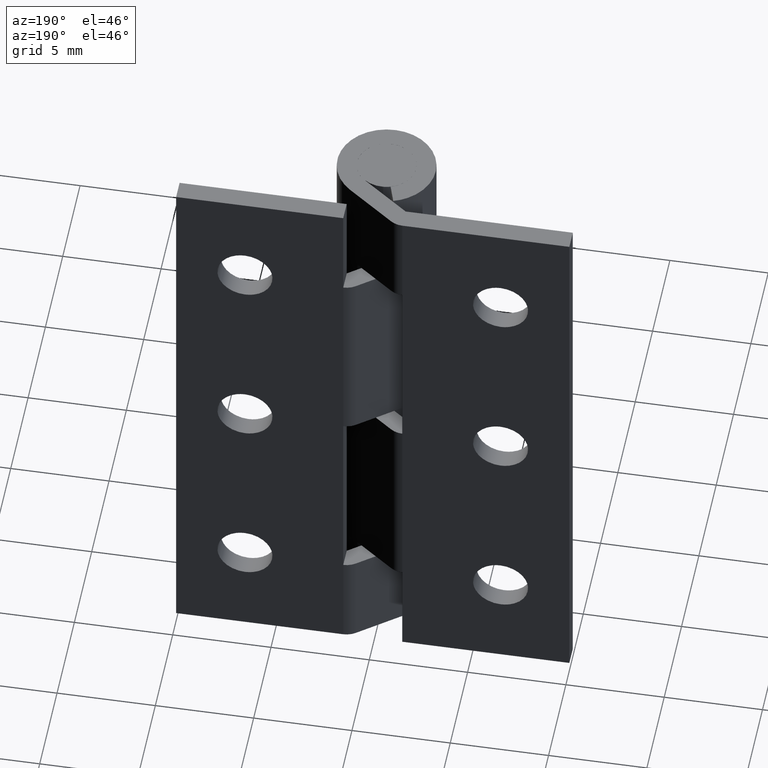
[diagram: clean part render]
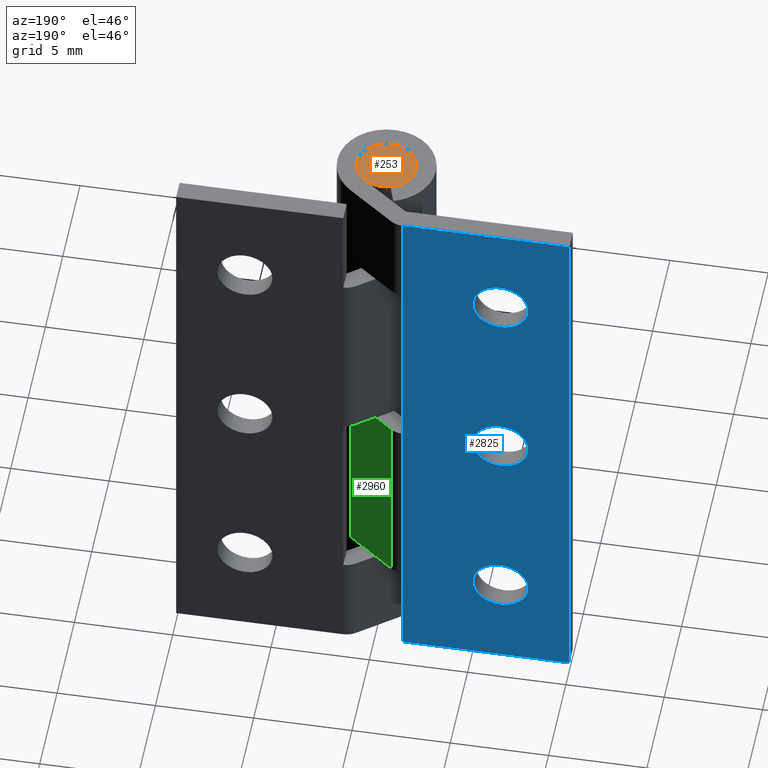
[diagram: same view with three faces highlighted in distinct colors, each labeled with its STEP entity id]
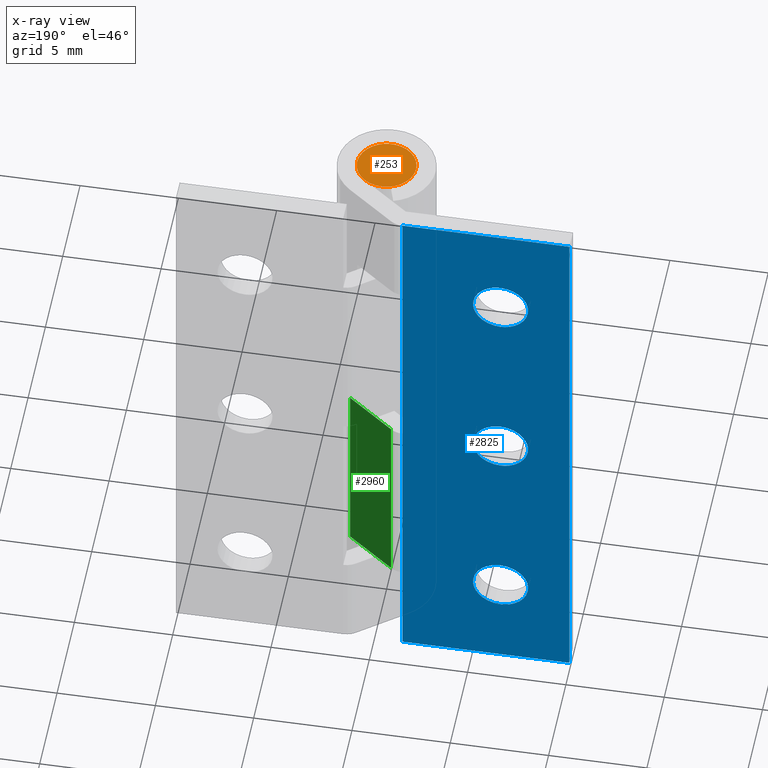
[diagram: x-ray of the same camera — body ghosted, the three highlighted faces saturated]
A machine part, auxiliary view with three faces highlighted in distinct colors.
The next image is the same camera in x-ray (body ghosted, the three faces saturated) — at least one of them is partly hidden behind the body in this view.
Their STEP definitions:

[orange] entity #253 — the highlighted face is a freeform B-spline surface patch.
#85=CARTESIAN_POINT('',(0.177051351996901,-1.489514289544101,30.0));
#86=VERTEX_POINT('',#85);
#92=CARTESIAN_POINT('',(-1.500000000000000,0.0,30.0));
#93=VERTEX_POINT('',#92);
#94=CARTESIAN_POINT('',(0.177051351996901,-1.489514289544102,30.000000000000004));
#95=CARTESIAN_POINT('',(0.088836179489753,-1.500000000000000,30.0));
#96=CARTESIAN_POINT('',(0.0,-1.500000000000000,30.0));
#97=CARTESIAN_POINT('',(-1.500000000000000,-1.500000000000000,30.000000000000004));
#98=CARTESIAN_POINT('',(-1.500000000000000,0.0,30.0));
#106=(BOUNDED_CURVE()B_SPLINE_CURVE(2,(#94,#95,#96,#97,#98),.UNSPECIFIED.,.F.,.U.)B_SPLINE_CURVE_WITH_KNOTS((3,2,3),(0.229562473512975,0.250000000000000,0.500000000000000),.UNSPECIFIED.)CURVE()GEOMETRIC_REPRESENTATION_ITEM()RATIONAL_B_SPLINE_CURVE((0.956026754182654,0.976055948330520,1.0,0.707106781186548,1.0))REPRESENTATION_ITEM(''));
#107=EDGE_CURVE('',#86,#93,#106,.T.);
#109=CARTESIAN_POINT('',(-0.091572809380306,1.497202197628028,30.0));
#110=VERTEX_POINT('',#109);
#111=CARTESIAN_POINT('',(-1.500000000000000,0.0,30.0));
#112=CARTESIAN_POINT('',(-1.500000000000000,1.411059100211211,29.999999999999996));
#113=CARTESIAN_POINT('',(-0.091572809380306,1.497202197628028,30.0));
#121=(BOUNDED_CURVE()B_SPLINE_CURVE(2,(#111,#112,#113),.UNSPECIFIED.,.F.,.U.)B_SPLINE_CURVE_WITH_KNOTS((3,3),(0.500000000000000,0.739332962223986),.UNSPECIFIED.)CURVE()GEOMETRIC_REPRESENTATION_ITEM()RATIONAL_B_SPLINE_CURVE((1.0,0.719603993304233,0.976072041634662))REPRESENTATION_ITEM(''));
#122=EDGE_CURVE('',#93,#110,#121,.T.);
#196=CARTESIAN_POINT('',(1.500000000000000,0.0,30.0));
#197=VERTEX_POINT('',#196);
#198=CARTESIAN_POINT('',(-0.091572809380306,1.497202197628028,30.0));
#199=CARTESIAN_POINT('',(-0.045829145026122,1.500000000000000,30.000000000000007));
#200=CARTESIAN_POINT('',(0.0,1.500000000000000,30.0));
#201=CARTESIAN_POINT('',(1.500000000000000,1.500000000000000,30.000000000000004));
#202=CARTESIAN_POINT('',(1.500000000000000,0.0,30.0));
#210=(BOUNDED_CURVE()B_SPLINE_CURVE(2,(#198,#199,#200,#201,#202),.UNSPECIFIED.,.F.,.U.)B_SPLINE_CURVE_WITH_KNOTS((3,2,3),(0.739332962223985,0.750000000000000,1.0),.UNSPECIFIED.)CURVE()GEOMETRIC_REPRESENTATION_ITEM()RATIONAL_B_SPLINE_CURVE((0.976072041634661,0.987502787882313,1.0,0.707106781186548,1.0))REPRESENTATION_ITEM(''));
#211=EDGE_CURVE('',#110,#197,#210,.T.);
#213=CARTESIAN_POINT('',(1.500000000000000,0.0,30.0));
#214=CARTESIAN_POINT('',(1.500000000000000,-1.332261788905860,30.000000000000004));
#215=CARTESIAN_POINT('',(0.177051351996901,-1.489514289544102,30.000000000000004));
#223=(BOUNDED_CURVE()B_SPLINE_CURVE(2,(#213,#214,#215),.UNSPECIFIED.,.F.,.U.)B_SPLINE_CURVE_WITH_KNOTS((3,3),(0.0,0.229562473512975),.UNSPECIFIED.)CURVE()GEOMETRIC_REPRESENTATION_ITEM()RATIONAL_B_SPLINE_CURVE((1.0,0.731050832856028,0.956026754182654))REPRESENTATION_ITEM(''));
#224=EDGE_CURVE('',#197,#86,#223,.T.);
#242=CARTESIAN_POINT('',(-1.649849994185418,-1.649822796803227,30.0));
#243=CARTESIAN_POINT('',(1.649850074651688,-1.649822796803227,30.0));
#244=CARTESIAN_POINT('',(-1.649849994185418,1.649813489537945,30.0));
#245=CARTESIAN_POINT('',(1.649850074651688,1.649813489537945,30.0));
#246=B_SPLINE_SURFACE_WITH_KNOTS('',1,1,((#242,#244),(#243,#245)),.UNSPECIFIED.,.F.,.F.,.U.,(2,2),(2,2),(0.0,3.299700068837106),(0.0,3.299636286341172),.UNSPECIFIED.);
#247=ORIENTED_EDGE('',*,*,#211,.F.);
#248=ORIENTED_EDGE('',*,*,#122,.F.);
#249=ORIENTED_EDGE('',*,*,#107,.F.);
#250=ORIENTED_EDGE('',*,*,#224,.F.);
#251=EDGE_LOOP('',(#247,#248,#249,#250));
#252=FACE_OUTER_BOUND('',#251,.T.);
#253=ADVANCED_FACE('',(#252),#246,.T.);

[blue] entity #2825 — the highlighted face is a freeform B-spline surface patch.
#1751=CARTESIAN_POINT('',(-7.895684267219878,4.0,25.109842734101591));
#1752=VERTEX_POINT('',#1751);
#1758=CARTESIAN_POINT('',(-6.500000000000000,4.0,26.399999999999999));
#1759=VERTEX_POINT('',#1758);
#1760=CARTESIAN_POINT('',(-6.500000000000000,4.0,26.399999999999999));
#1761=CARTESIAN_POINT('',(-7.794146688167815,4.0,26.400000000000009));
#1762=CARTESIAN_POINT('',(-7.895684267219878,4.000000000000000,25.109842734101591));
#1770=(BOUNDED_CURVE()B_SPLINE_CURVE(2,(#1760,#1761,#1762),.UNSPECIFIED.,.F.,.U.)B_SPLINE_CURVE_WITH_KNOTS((3,3),(0.0,0.236331300612474),.UNSPECIFIED.)CURVE()GEOMETRIC_REPRESENTATION_ITEM()RATIONAL_B_SPLINE_CURVE((1.0,0.723120658628972,0.969723356129465))REPRESENTATION_ITEM(''));
#1771=EDGE_CURVE('',#1759,#1752,#1770,.T.);
#1773=CARTESIAN_POINT('',(-5.104315732780123,4.0,24.890157265898409));
#1774=VERTEX_POINT('',#1773);
#1775=CARTESIAN_POINT('',(-5.104315732780123,4.000000000000001,24.890157265898402));
#1776=CARTESIAN_POINT('',(-5.100000000000000,4.000000000000001,24.944993850106265));
#1777=CARTESIAN_POINT('',(-5.100000000000000,4.0,25.0));
#1778=CARTESIAN_POINT('',(-5.100000000000000,4.0,26.399999999999995));
#1779=CARTESIAN_POINT('',(-6.500000000000000,4.0,26.399999999999999));
#1787=(BOUNDED_CURVE()B_SPLINE_CURVE(2,(#1775,#1776,#1777,#1778,#1779),.UNSPECIFIED.,.F.,.U.)B_SPLINE_CURVE_WITH_KNOTS((3,2,3),(0.736331300612474,0.750000000000000,1.0),.UNSPECIFIED.)CURVE()GEOMETRIC_REPRESENTATION_ITEM()RATIONAL_B_SPLINE_CURVE((0.969723356129465,0.983986122557576,1.0,0.707106781186547,1.0))REPRESENTATION_ITEM(''));
#1788=EDGE_CURVE('',#1774,#1759,#1787,.T.);
#1864=CARTESIAN_POINT('',(-6.500000000000000,4.0,23.600000000000001));
#1865=VERTEX_POINT('',#1864);
#1866=CARTESIAN_POINT('',(-6.500000000000000,4.0,23.600000000000001));
#1867=CARTESIAN_POINT('',(-5.205853311832186,4.0,23.599999999999998));
#1868=CARTESIAN_POINT('',(-5.104315732780123,4.0,24.890157265898409));
#1876=(BOUNDED_CURVE()B_SPLINE_CURVE(2,(#1866,#1867,#1868),.UNSPECIFIED.,.F.,.U.)B_SPLINE_CURVE_WITH_KNOTS((3,3),(0.500000000000000,0.736331300612473),.UNSPECIFIED.)CURVE()GEOMETRIC_REPRESENTATION_ITEM()RATIONAL_B_SPLINE_CURVE((1.0,0.723120658628972,0.969723356129464))REPRESENTATION_ITEM(''));
#1877=EDGE_CURVE('',#1865,#1774,#1876,.T.);
#1879=CARTESIAN_POINT('',(-7.895684267219878,4.000000000000001,25.109842734101598));
#1880=CARTESIAN_POINT('',(-7.900000000000000,4.000000000000001,25.055006149893735));
#1881=CARTESIAN_POINT('',(-7.900000000000000,4.0,25.0));
#1882=CARTESIAN_POINT('',(-7.899999999999999,4.0,23.600000000000001));
#1883=CARTESIAN_POINT('',(-6.500000000000000,4.0,23.600000000000001));
#1891=(BOUNDED_CURVE()B_SPLINE_CURVE(2,(#1879,#1880,#1881,#1882,#1883),.UNSPECIFIED.,.F.,.U.)B_SPLINE_CURVE_WITH_KNOTS((3,2,3),(0.236331300612474,0.250000000000000,0.500000000000000),.UNSPECIFIED.)CURVE()GEOMETRIC_REPRESENTATION_ITEM()RATIONAL_B_SPLINE_CURVE((0.969723356129465,0.983986122557576,1.0,0.707106781186547,1.0))REPRESENTATION_ITEM(''));
#1892=EDGE_CURVE('',#1752,#1865,#1891,.T.);
#1933=CARTESIAN_POINT('',(-7.895684267219878,4.0,15.109842734101591));
#1934=VERTEX_POINT('',#1933);
#1940=CARTESIAN_POINT('',(-6.500000000000000,4.0,16.399999999999999));
#1941=VERTEX_POINT('',#1940);
#1942=CARTESIAN_POINT('',(-6.500000000000000,4.0,16.399999999999999));
#1943=CARTESIAN_POINT('',(-7.794146688167817,4.0,16.400000000000002));
#1944=CARTESIAN_POINT('',(-7.895684267219878,4.000000000000000,15.109842734101592));
#1952=(BOUNDED_CURVE()B_SPLINE_CURVE(2,(#1942,#1943,#1944),.UNSPECIFIED.,.F.,.U.)B_SPLINE_CURVE_WITH_KNOTS((3,3),(0.0,0.236331300612474),.UNSPECIFIED.)CURVE()GEOMETRIC_REPRESENTATION_ITEM()RATIONAL_B_SPLINE_CURVE((1.0,0.723120658628971,0.969723356129466))REPRESENTATION_ITEM(''));
#1953=EDGE_CURVE('',#1941,#1934,#1952,.T.);
#1955=CARTESIAN_POINT('',(-5.104315732780123,4.0,14.890157265898409));
#1956=VERTEX_POINT('',#1955);
#1957=CARTESIAN_POINT('',(-5.104315732780123,4.0,14.890157265898406));
#1958=CARTESIAN_POINT('',(-5.100000000000001,4.000000000000001,14.944993850106270));
#1959=CARTESIAN_POINT('',(-5.100000000000000,4.0,15.0));
#1960=CARTESIAN_POINT('',(-5.100000000000000,4.0,16.400000000000002));
#1961=CARTESIAN_POINT('',(-6.500000000000000,4.0,16.399999999999999));
#1969=(BOUNDED_CURVE()B_SPLINE_CURVE(2,(#1957,#1958,#1959,#1960,#1961),.UNSPECIFIED.,.F.,.U.)B_SPLINE_CURVE_WITH_KNOTS((3,2,3),(0.736331300612474,0.750000000000000,1.0),.UNSPECIFIED.)CURVE()GEOMETRIC_REPRESENTATION_ITEM()RATIONAL_B_SPLINE_CURVE((0.969723356129466,0.983986122557576,1.0,0.707106781186547,1.0))REPRESENTATION_ITEM(''));
#1970=EDGE_CURVE('',#1956,#1941,#1969,.T.);
#2046=CARTESIAN_POINT('',(-6.500000000000000,4.0,13.600000000000000));
#2047=VERTEX_POINT('',#2046);
#2048=CARTESIAN_POINT('',(-6.500000000000000,4.0,13.600000000000000));
#2049=CARTESIAN_POINT('',(-5.205853311832186,4.0,13.600000000000000));
#2050=CARTESIAN_POINT('',(-5.104315732780123,4.0,14.890157265898413));
#2058=(BOUNDED_CURVE()B_SPLINE_CURVE(2,(#2048,#2049,#2050),.UNSPECIFIED.,.F.,.U.)B_SPLINE_CURVE_WITH_KNOTS((3,3),(0.500000000000000,0.736331300612473),.UNSPECIFIED.)CURVE()GEOMETRIC_REPRESENTATION_ITEM()RATIONAL_B_SPLINE_CURVE((1.0,0.723120658628972,0.969723356129464))REPRESENTATION_ITEM(''));
#2059=EDGE_CURVE('',#2047,#1956,#2058,.T.);
#2061=CARTESIAN_POINT('',(-7.895684267219878,4.000000000000000,15.109842734101592));
#2062=CARTESIAN_POINT('',(-7.900000000000000,4.0,15.055006149893735));
#2063=CARTESIAN_POINT('',(-7.900000000000000,4.0,15.0));
#2064=CARTESIAN_POINT('',(-7.899999999999999,4.0,13.600000000000001));
#2065=CARTESIAN_POINT('',(-6.500000000000000,4.0,13.600000000000000));
#2073=(BOUNDED_CURVE()B_SPLINE_CURVE(2,(#2061,#2062,#2063,#2064,#2065),.UNSPECIFIED.,.F.,.U.)B_SPLINE_CURVE_WITH_KNOTS((3,2,3),(0.236331300612474,0.250000000000000,0.500000000000000),.UNSPECIFIED.)CURVE()GEOMETRIC_REPRESENTATION_ITEM()RATIONAL_B_SPLINE_CURVE((0.969723356129466,0.983986122557576,1.0,0.707106781186547,1.0))REPRESENTATION_ITEM(''));
#2074=EDGE_CURVE('',#1934,#2047,#2073,.T.);
#2115=CARTESIAN_POINT('',(-7.895684267219878,4.0,5.109842734101593));
#2116=VERTEX_POINT('',#2115);
#2122=CARTESIAN_POINT('',(-6.500000000000000,4.0,6.400000000000000));
#2123=VERTEX_POINT('',#2122);
#2124=CARTESIAN_POINT('',(-6.500000000000000,4.0,6.400000000000000));
#2125=CARTESIAN_POINT('',(-7.794146688167817,4.000000000000000,6.400000000000000));
#2126=CARTESIAN_POINT('',(-7.895684267219878,4.000000000000000,5.109842734101594));
#2134=(BOUNDED_CURVE()B_SPLINE_CURVE(2,(#2124,#2125,#2126),.UNSPECIFIED.,.F.,.U.)B_SPLINE_CURVE_WITH_KNOTS((3,3),(0.0,0.236331300612474),.UNSPECIFIED.)CURVE()GEOMETRIC_REPRESENTATION_ITEM()RATIONAL_B_SPLINE_CURVE((1.0,0.723120658628971,0.969723356129466))REPRESENTATION_ITEM(''));
#2135=EDGE_CURVE('',#2123,#2116,#2134,.T.);
#2137=CARTESIAN_POINT('',(-5.104315732780123,4.0,4.890157265898408));
#2138=VERTEX_POINT('',#2137);
#2139=CARTESIAN_POINT('',(-5.104315732780123,4.000000000000001,4.890157265898408));
#2140=CARTESIAN_POINT('',(-5.100000000000001,4.0,4.944993850106270));
#2141=CARTESIAN_POINT('',(-5.100000000000000,4.0,5.0));
#2142=CARTESIAN_POINT('',(-5.100000000000000,4.0,6.400000000000000));
#2143=CARTESIAN_POINT('',(-6.500000000000000,4.0,6.400000000000000));
#2151=(BOUNDED_CURVE()B_SPLINE_CURVE(2,(#2139,#2140,#2141,#2142,#2143),.UNSPECIFIED.,.F.,.U.)B_SPLINE_CURVE_WITH_KNOTS((3,2,3),(0.736331300612474,0.750000000000000,1.0),.UNSPECIFIED.)CURVE()GEOMETRIC_REPRESENTATION_ITEM()RATIONAL_B_SPLINE_CURVE((0.969723356129465,0.983986122557576,1.0,0.707106781186547,1.0))REPRESENTATION_ITEM(''));
#2152=EDGE_CURVE('',#2138,#2123,#2151,.T.);
#2228=CARTESIAN_POINT('',(-6.500000000000000,4.0,3.600000000000000));
#2229=VERTEX_POINT('',#2228);
#2230=CARTESIAN_POINT('',(-6.500000000000000,4.0,3.600000000000000));
#2231=CARTESIAN_POINT('',(-5.205853311832186,4.0,3.600000000000000));
#2232=CARTESIAN_POINT('',(-5.104315732780123,4.0,4.890157265898408));
#2240=(BOUNDED_CURVE()B_SPLINE_CURVE(2,(#2230,#2231,#2232),.UNSPECIFIED.,.F.,.U.)B_SPLINE_CURVE_WITH_KNOTS((3,3),(0.500000000000000,0.736331300612473),.UNSPECIFIED.)CURVE()GEOMETRIC_REPRESENTATION_ITEM()RATIONAL_B_SPLINE_CURVE((1.0,0.723120658628972,0.969723356129464))REPRESENTATION_ITEM(''));
#2241=EDGE_CURVE('',#2229,#2138,#2240,.T.);
#2243=CARTESIAN_POINT('',(-7.895684267219878,4.000000000000001,5.109842734101593));
#2244=CARTESIAN_POINT('',(-7.900000000000000,4.0,5.055006149893731));
#2245=CARTESIAN_POINT('',(-7.900000000000000,4.0,5.0));
#2246=CARTESIAN_POINT('',(-7.899999999999999,4.0,3.600000000000000));
#2247=CARTESIAN_POINT('',(-6.500000000000000,4.0,3.600000000000000));
#2255=(BOUNDED_CURVE()B_SPLINE_CURVE(2,(#2243,#2244,#2245,#2246,#2247),.UNSPECIFIED.,.F.,.U.)B_SPLINE_CURVE_WITH_KNOTS((3,2,3),(0.236331300612474,0.250000000000000,0.500000000000000),.UNSPECIFIED.)CURVE()GEOMETRIC_REPRESENTATION_ITEM()RATIONAL_B_SPLINE_CURVE((0.969723356129465,0.983986122557576,1.0,0.707106781186547,1.0))REPRESENTATION_ITEM(''));
#2256=EDGE_CURVE('',#2116,#2229,#2255,.T.);
#2297=CARTESIAN_POINT('',(-1.500000000000000,4.0,15.0));
#2298=VERTEX_POINT('',#2297);
#2397=CARTESIAN_POINT('',(-1.500000000000000,4.0,25.0));
#2398=VERTEX_POINT('',#2397);
#2459=CARTESIAN_POINT('',(-1.500000000000000,4.0,25.0));
#2460=CARTESIAN_POINT('',(-1.500000000000000,4.0,15.0));
#2461=QUASI_UNIFORM_CURVE('',1,(#2459,#2460),.UNSPECIFIED.,.F.,.U.);
#2462=EDGE_CURVE('',#2398,#2298,#2461,.T.);
#2510=CARTESIAN_POINT('',(-1.499998333331540,4.0,5.0));
#2511=VERTEX_POINT('',#2510);
#2573=CARTESIAN_POINT('',(-1.500000000000000,4.0,0.0));
#2574=VERTEX_POINT('',#2573);
#2580=CARTESIAN_POINT('',(-1.499998333331540,4.0,5.0));
#2581=CARTESIAN_POINT('',(-1.500000000000000,4.0,0.0));
#2582=QUASI_UNIFORM_CURVE('',1,(#2580,#2581),.UNSPECIFIED.,.F.,.U.);
#2583=EDGE_CURVE('',#2511,#2574,#2582,.T.);
#2602=CARTESIAN_POINT('',(-10.0,4.0,0.0));
#2603=VERTEX_POINT('',#2602);
#2609=CARTESIAN_POINT('',(-10.0,4.0,0.0));
#2610=CARTESIAN_POINT('',(-1.500000000000000,4.0,0.0));
#2611=QUASI_UNIFORM_CURVE('',1,(#2609,#2610),.UNSPECIFIED.,.F.,.U.);
#2612=EDGE_CURVE('',#2603,#2574,#2611,.T.);
#2631=CARTESIAN_POINT('',(-1.499998333331540,4.0,30.0));
#2632=VERTEX_POINT('',#2631);
#2646=CARTESIAN_POINT('',(-10.0,4.0,30.0));
#2647=VERTEX_POINT('',#2646);
#2648=CARTESIAN_POINT('',(-10.0,4.0,30.0));
#2649=CARTESIAN_POINT('',(-1.499998333331540,4.0,30.0));
#2650=QUASI_UNIFORM_CURVE('',1,(#2648,#2649),.UNSPECIFIED.,.F.,.U.);
#2651=EDGE_CURVE('',#2647,#2632,#2650,.T.);
#2736=CARTESIAN_POINT('',(-10.0,4.0,30.0));
#2737=CARTESIAN_POINT('',(-10.0,4.0,0.0));
#2738=QUASI_UNIFORM_CURVE('',1,(#2736,#2737),.UNSPECIFIED.,.F.,.U.);
#2739=EDGE_CURVE('',#2647,#2603,#2738,.T.);
#2785=CARTESIAN_POINT('',(-10.424575066775439,4.0,-1.498499941854179));
#2786=CARTESIAN_POINT('',(-10.424575066775439,4.0,31.498500746516889));
#2787=CARTESIAN_POINT('',(-1.075423038568293,4.0,-1.498499941854179));
#2788=CARTESIAN_POINT('',(-1.075423038568293,4.0,31.498500746516889));
#2789=B_SPLINE_SURFACE_WITH_KNOTS('',1,1,((#2785,#2787),(#2786,#2788)),.UNSPECIFIED.,.F.,.F.,.U.,(2,2),(2,2),(0.0,32.997000688371067),(0.0,9.349152028207145),.UNSPECIFIED.);
#2790=ORIENTED_EDGE('',*,*,#2651,.T.);
#2791=CARTESIAN_POINT('',(-1.499998333331540,4.0,30.0));
#2792=CARTESIAN_POINT('',(-1.500000000000000,4.0,25.0));
#2793=QUASI_UNIFORM_CURVE('',1,(#2791,#2792),.UNSPECIFIED.,.F.,.U.);
#2794=EDGE_CURVE('',#2632,#2398,#2793,.T.);
#2795=ORIENTED_EDGE('',*,*,#2794,.T.);
#2796=ORIENTED_EDGE('',*,*,#2462,.T.);
#2797=CARTESIAN_POINT('',(-1.500000000000000,4.0,15.0));
#2798=CARTESIAN_POINT('',(-1.499998333331540,4.0,5.0));
#2799=QUASI_UNIFORM_CURVE('',1,(#2797,#2798),.UNSPECIFIED.,.F.,.U.);
#2800=EDGE_CURVE('',#2298,#2511,#2799,.T.);
#2801=ORIENTED_EDGE('',*,*,#2800,.T.);
#2802=ORIENTED_EDGE('',*,*,#2583,.T.);
#2803=ORIENTED_EDGE('',*,*,#2612,.F.);
#2804=ORIENTED_EDGE('',*,*,#2739,.F.);
#2805=EDGE_LOOP('',(#2790,#2795,#2796,#2801,#2802,#2803,#2804));
#2806=FACE_OUTER_BOUND('',#2805,.T.);
#2807=ORIENTED_EDGE('',*,*,#2241,.T.);
#2808=ORIENTED_EDGE('',*,*,#2152,.T.);
#2809=ORIENTED_EDGE('',*,*,#2135,.T.);
#2810=ORIENTED_EDGE('',*,*,#2256,.T.);
#2811=EDGE_LOOP('',(#2807,#2808,#2809,#2810));
#2812=FACE_BOUND('',#2811,.T.);
#2813=ORIENTED_EDGE('',*,*,#2059,.T.);
#2814=ORIENTED_EDGE('',*,*,#1970,.T.);
#2815=ORIENTED_EDGE('',*,*,#1953,.T.);
#2816=ORIENTED_EDGE('',*,*,#2074,.T.);
#2817=EDGE_LOOP('',(#2813,#2814,#2815,#2816));
#2818=FACE_BOUND('',#2817,.T.);
#2819=ORIENTED_EDGE('',*,*,#1877,.T.);
#2820=ORIENTED_EDGE('',*,*,#1788,.T.);
#2821=ORIENTED_EDGE('',*,*,#1771,.T.);
#2822=ORIENTED_EDGE('',*,*,#1892,.T.);
#2823=EDGE_LOOP('',(#2819,#2820,#2821,#2822));
#2824=FACE_BOUND('',#2823,.T.);
#2825=ADVANCED_FACE('',(#2806,#2812,#2818,#2824),#2789,.T.);

[green] entity #2960 — the highlighted face is a freeform B-spline surface patch.
#2269=CARTESIAN_POINT('',(1.502310180700070,1.998265277926060,15.0));
#2270=VERTEX_POINT('',#2269);
#2290=CARTESIAN_POINT('',(-0.899997622218766,3.799999466664945,15.0));
#2291=VERTEX_POINT('',#2290);
#2292=CARTESIAN_POINT('',(1.502310180700070,1.998265277926060,15.0));
#2293=CARTESIAN_POINT('',(-0.899997622218766,3.799999466664945,15.0));
#2294=QUASI_UNIFORM_CURVE('',1,(#2292,#2293),.UNSPECIFIED.,.F.,.U.);
#2295=EDGE_CURVE('',#2270,#2291,#2294,.T.);
#2517=CARTESIAN_POINT('',(-0.899997622218766,3.799999466664945,5.0));
#2518=VERTEX_POINT('',#2517);
#2532=CARTESIAN_POINT('',(1.502310180700070,1.998265277926060,5.0));
#2533=VERTEX_POINT('',#2532);
#2534=CARTESIAN_POINT('',(1.502310180700070,1.998265277926060,5.0));
#2535=CARTESIAN_POINT('',(-0.899997622218766,3.799999466664945,5.0));
#2536=QUASI_UNIFORM_CURVE('',1,(#2534,#2535),.UNSPECIFIED.,.F.,.U.);
#2537=EDGE_CURVE('',#2533,#2518,#2536,.T.);
#2841=CARTESIAN_POINT('',(-0.899997622218766,3.799999466664945,5.0));
#2842=CARTESIAN_POINT('',(-0.899997622218766,3.799999466664945,15.0));
#2843=QUASI_UNIFORM_CURVE('',1,(#2841,#2842),.UNSPECIFIED.,.F.,.U.);
#2844=EDGE_CURVE('',#2518,#2291,#2843,.T.);
#2938=CARTESIAN_POINT('',(1.502310180700070,1.998265277926060,15.0));
#2939=CARTESIAN_POINT('',(1.502310180700070,1.998265277926060,5.0));
#2940=QUASI_UNIFORM_CURVE('',1,(#2938,#2939),.UNSPECIFIED.,.F.,.U.);
#2941=EDGE_CURVE('',#2270,#2533,#2940,.T.);
#2949=CARTESIAN_POINT('',(1.622305450799717,1.908268658690650,4.500500019381941));
#2950=CARTESIAN_POINT('',(-1.019992956753349,3.889996134226605,4.500500019381941));
#2951=CARTESIAN_POINT('',(1.622305450799717,1.908268658690650,15.499500248838959));
#2952=CARTESIAN_POINT('',(-1.019992956753349,3.889996134226605,15.499500248838959));
#2953=B_SPLINE_SURFACE_WITH_KNOTS('',1,1,((#2949,#2951),(#2950,#2952)),.UNSPECIFIED.,.F.,.F.,.U.,(2,2),(2,2),(0.0,3.302875211365331),(0.0,10.999000229457019),.UNSPECIFIED.);
#2954=ORIENTED_EDGE('',*,*,#2295,.F.);
#2955=ORIENTED_EDGE('',*,*,#2941,.T.);
#2956=ORIENTED_EDGE('',*,*,#2537,.T.);
#2957=ORIENTED_EDGE('',*,*,#2844,.T.);
#2958=EDGE_LOOP('',(#2954,#2955,#2956,#2957));
#2959=FACE_OUTER_BOUND('',#2958,.T.);
#2960=ADVANCED_FACE('',(#2959),#2953,.T.);